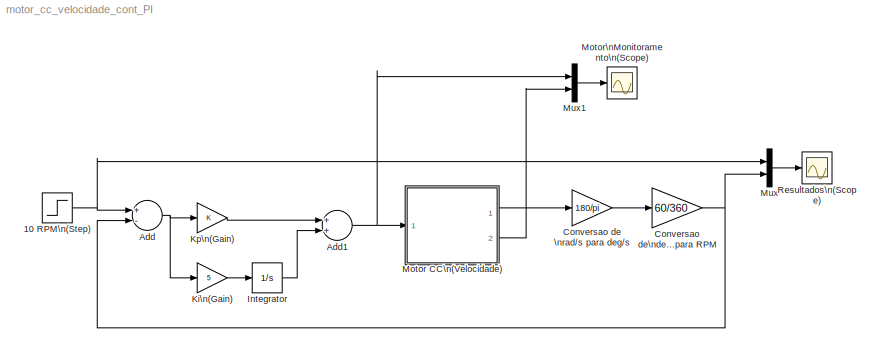
MODEL motor_cc_velocidade_cont_PI
KIND model
BLOCK [Step] 10 RPM\n(Step)
  After = 10
  SID = 18
  SampleTime = 0
BLOCK [Sum] Add
  InputSameDT = off
  Inputs = +-
  OutDataTypeStr = Inherit: Inherit via internal rule
  Ports = [2, 1]
  SID = 24
  SaturateOnIntegerOverflow = off
BLOCK [Sum] Add1
  InputSameDT = off
  OutDataTypeStr = Inherit: Inherit via internal rule
  Ports = [2, 1]
  SID = 31
  SaturateOnIntegerOverflow = off
BLOCK [Gain] Conversao de \nrad//s para deg//s
  Gain = 180/pi
  OutDataTypeStr = Inherit: Inherit via internal rule
  ParamDataTypeStr = Inherit: Inherit via internal rule
  SID = 21
  SaturateOnIntegerOverflow = off
BLOCK [Gain] Conversao de\ndeg//s para RPM
  Gain = 60/360
  OutDataTypeStr = Inherit: Inherit via internal rule
  ParamDataTypeStr = Inherit: Inherit via internal rule
  SID = 22
  SaturateOnIntegerOverflow = off
BLOCK [Integrator] Integrator
  Ports = [1, 1]
  SID = 30
BLOCK [Gain] Ki\n(Gain)
  Gain = 5
  OutDataTypeStr = Inherit: Inherit via internal rule
  ParamDataTypeStr = Inherit: Inherit via internal rule
  SID = 29
  SaturateOnIntegerOverflow = off
BLOCK [Gain] Kp\n(Gain)
  OutDataTypeStr = Inherit: Inherit via internal rule
  ParamDataTypeStr = Inherit: Inherit via internal rule
  SID = 23
  SaturateOnIntegerOverflow = off
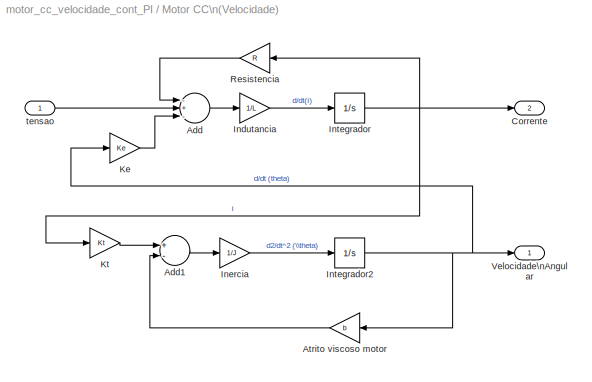
BLOCK [SubSystem] Motor CC\n(Velocidade)
  Ports = [1, 2]
  RequestExecContextInheritance = off
  SID = 14
BLOCK [Sum] Motor CC\n(Velocidade)/Add
  InputSameDT = off
  Inputs = -+-
  OutDataTypeStr = Inherit: Inherit via internal rule
  Ports = [3, 1]
  SID = 2
  SaturateOnIntegerOverflow = off
BLOCK [Sum] Motor CC\n(Velocidade)/Add1
  InputSameDT = off
  Inputs = +-
  OutDataTypeStr = Inherit: Inherit via internal rule
  Ports = [2, 1]
  SID = 7
  SaturateOnIntegerOverflow = off
BLOCK [Gain] Motor CC\n(Velocidade)/Atrito viscoso motor
  Gain = b
  OutDataTypeStr = Inherit: Inherit via internal rule
  ParamDataTypeStr = Inherit: Inherit via internal rule
  SID = 10
  SaturateOnIntegerOverflow = off
BLOCK [Outport] Motor CC\n(Velocidade)/Corrente
  IconDisplay = Port number
  Port = 2
  SID = 17
  VectorParamsAs1DForOutWhenUnconnected = off
BLOCK [Gain] Motor CC\n(Velocidade)/Indutancia
  Gain = 1/L
  OutDataTypeStr = Inherit: Inherit via internal rule
  ParamDataTypeStr = Inherit: Inherit via internal rule
  SID = 3
  SaturateOnIntegerOverflow = off
BLOCK [Gain] Motor CC\n(Velocidade)/Inercia
  Gain = 1/J
  OutDataTypeStr = Inherit: Inherit via internal rule
  ParamDataTypeStr = Inherit: Inherit via internal rule
  SID = 8
  SaturateOnIntegerOverflow = off
BLOCK [Integrator] Motor CC\n(Velocidade)/Integrador
  Ports = [1, 1]
  SID = 4
BLOCK [Integrator] Motor CC\n(Velocidade)/Integrador2
  Ports = [1, 1]
  SID = 9
BLOCK [Gain] Motor CC\n(Velocidade)/Ke
  Gain = Ke
  OutDataTypeStr = Inherit: Inherit via internal rule
  ParamDataTypeStr = Inherit: Inherit via internal rule
  SID = 13
  SaturateOnIntegerOverflow = off
BLOCK [Gain] Motor CC\n(Velocidade)/Kt
  Gain = Kt
  OutDataTypeStr = Inherit: Inherit via internal rule
  ParamDataTypeStr = Inherit: Inherit via internal rule
  SID = 12
  SaturateOnIntegerOverflow = off
BLOCK [Gain] Motor CC\n(Velocidade)/Resistencia
  Gain = R
  OutDataTypeStr = Inherit: Inherit via internal rule
  ParamDataTypeStr = Inherit: Inherit via internal rule
  SID = 5
  SaturateOnIntegerOverflow = off
BLOCK [Outport] Motor CC\n(Velocidade)/Velocidade\nAngular
  IconDisplay = Port number
  SID = 16
  VectorParamsAs1DForOutWhenUnconnected = off
BLOCK [Inport] Motor CC\n(Velocidade)/tensao
  IconDisplay = Port number
  SID = 15
BLOCK [Scope] Motor\nMonitoramento\n(Scope)
  Floating = off
  NumInputPorts = 1
  Ports = [1]
  SID = 27
  ScopeSpecificationString = Simulink.scopes.TimeScopeBlockCfg('CurrentConfiguration', extmgr.ConfigurationSet(extmgr.Configuration('Core','General UI',true,'FigureColor',[1 1 1]),extmgr.Configuration('Core','Source UI',true),extmgr.Configuration('Sources','WiredSimulink',true,'DataLoggingVariableName','ScopeData1'),extmgr.Configuration('Visuals','Time Domain',true,'SerializedDisplays',{struct('MinYLimReal','-2.25301','MaxYLi...<+1810ch>
BLOCK [Mux] Mux
  DisplayOption = bar
  Inputs = 2
  Ports = [2, 1]
  SID = 25
BLOCK [Mux] Mux1
  DisplayOption = bar
  Inputs = 2
  Ports = [2, 1]
  SID = 26
BLOCK [Scope] Resultados\n(Scope)
  Floating = off
  NumInputPorts = 1
  Ports = [1]
  SID = 20
  ScopeSpecificationString = Simulink.scopes.TimeScopeBlockCfg('CurrentConfiguration', extmgr.ConfigurationSet(extmgr.Configuration('Core','General UI',true,'FigureColor',[1 1 1]),extmgr.Configuration('Core','Source UI',true),extmgr.Configuration('Sources','WiredSimulink',true),extmgr.Configuration('Visuals','Time Domain',true,'SerializedDisplays',{struct('MinYLimReal','-1.51105','MaxYLimReal','13.59948','YLabelReal','','MinY...<+1786ch>
NET 10 RPM\n(Step):1 -> Add:1, Mux:1
NET Add1:1 -> Motor CC\n(Velocidade):1, Mux1:1
NET Add:1 -> Ki\n(Gain):1, Kp\n(Gain):1
LINE Conversao de \nrad//s para deg//s:1 -> Conversao de\ndeg//s para RPM:1
NET Conversao de\ndeg//s para RPM:1 -> Add:2, Mux:2
LINE Integrator:1 -> Add1:2
LINE Ki\n(Gain):1 -> Integrator:1
LINE Kp\n(Gain):1 -> Add1:1
LINE Motor CC\n(Velocidade)/Add1:1 -> Motor CC\n(Velocidade)/Inercia:1
LINE Motor CC\n(Velocidade)/Add:1 -> Motor CC\n(Velocidade)/Indutancia:1
LINE Motor CC\n(Velocidade)/Atrito viscoso motor:1 -> Motor CC\n(Velocidade)/Add1:2
LINE Motor CC\n(Velocidade)/Indutancia:1 -> Motor CC\n(Velocidade)/Integrador:1
LINE Motor CC\n(Velocidade)/Inercia:1 -> Motor CC\n(Velocidade)/Integrador2:1
NET Motor CC\n(Velocidade)/Integrador2:1 -> Motor CC\n(Velocidade)/Atrito viscoso motor:1, Motor CC\n(Velocidade)/Ke:1, Motor CC\n(Velocidade)/Velocidade\nAngular:1
NET Motor CC\n(Velocidade)/Integrador:1 -> Motor CC\n(Velocidade)/Corrente:1, Motor CC\n(Velocidade)/Kt:1, Motor CC\n(Velocidade)/Resistencia:1
LINE Motor CC\n(Velocidade)/Ke:1 -> Motor CC\n(Velocidade)/Add:3
LINE Motor CC\n(Velocidade)/Kt:1 -> Motor CC\n(Velocidade)/Add1:1
LINE Motor CC\n(Velocidade)/Resistencia:1 -> Motor CC\n(Velocidade)/Add:1
LINE Motor CC\n(Velocidade)/tensao:1 -> Motor CC\n(Velocidade)/Add:2
LINE Motor CC\n(Velocidade):1 -> Conversao de \nrad//s para deg//s:1
LINE Motor CC\n(Velocidade):2 -> Mux1:2
LINE Mux1:1 -> Motor\nMonitoramento\n(Scope):1
LINE Mux:1 -> Resultados\n(Scope):1
note: NET lines group one-source signal fan-out (src -> all destinations, sorted); 1:1 wires keep LINE
